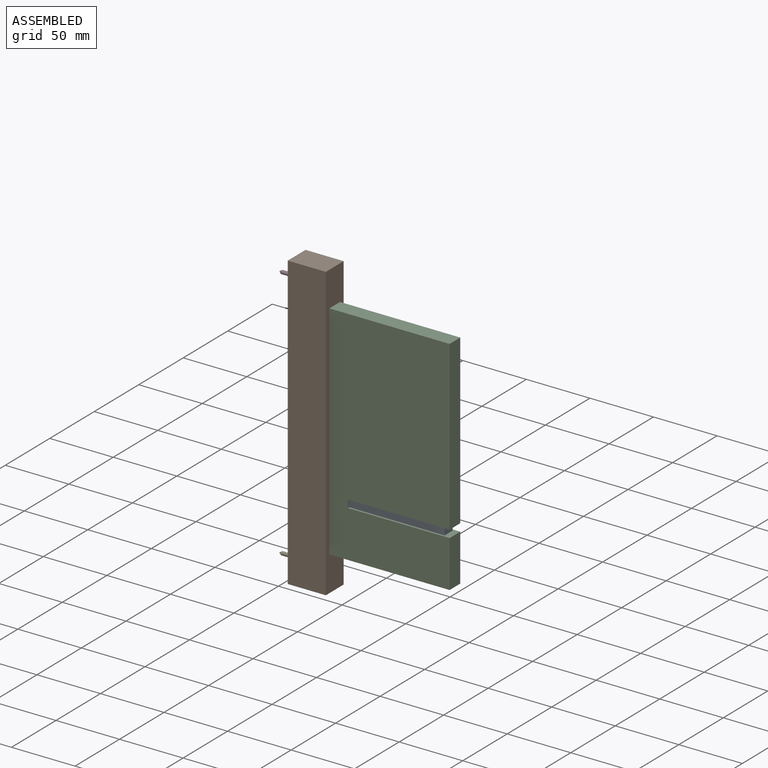
[diagram: assembled view]
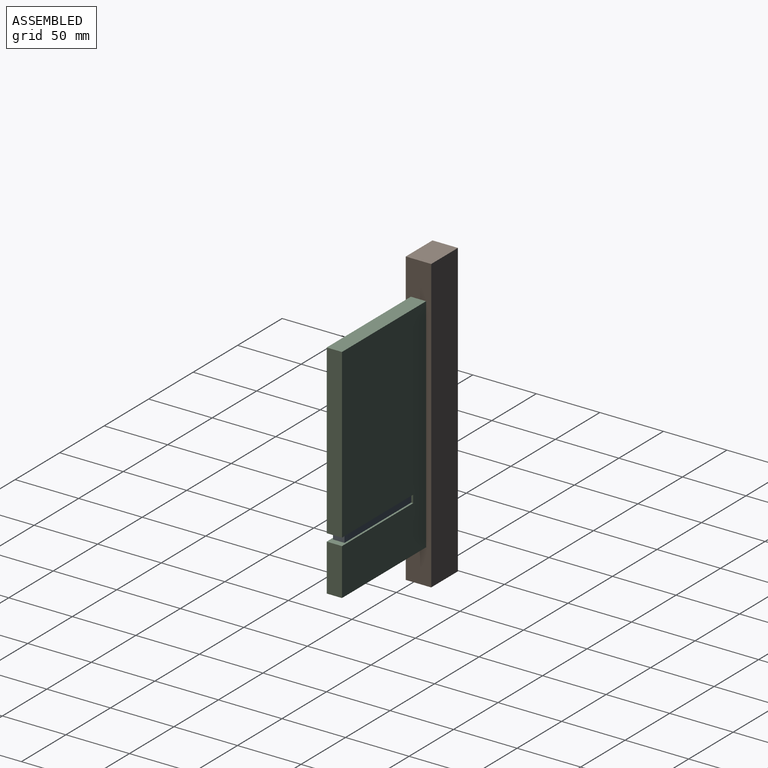
[diagram: assembled view, second angle]
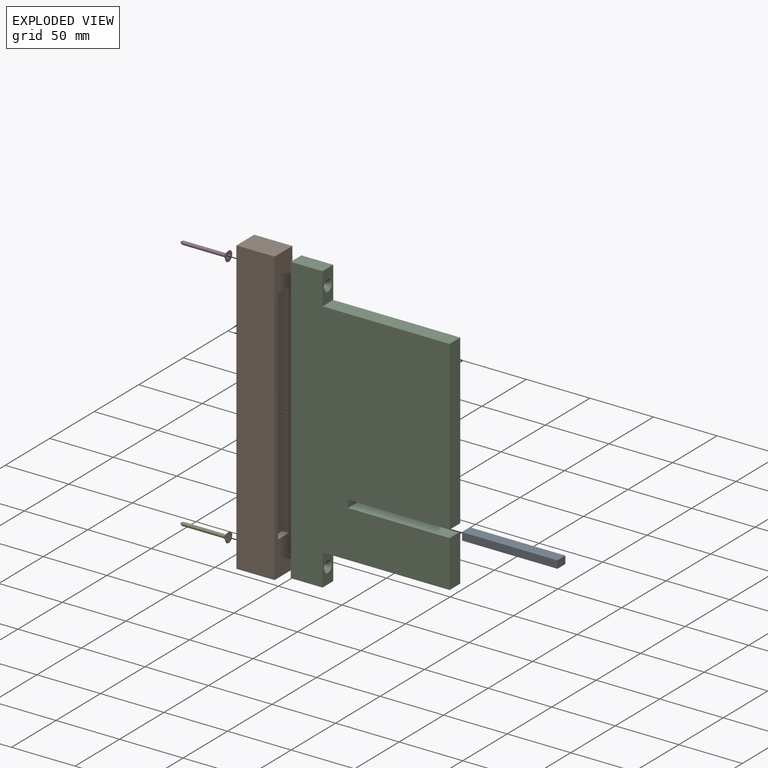
[diagram: exploded view]
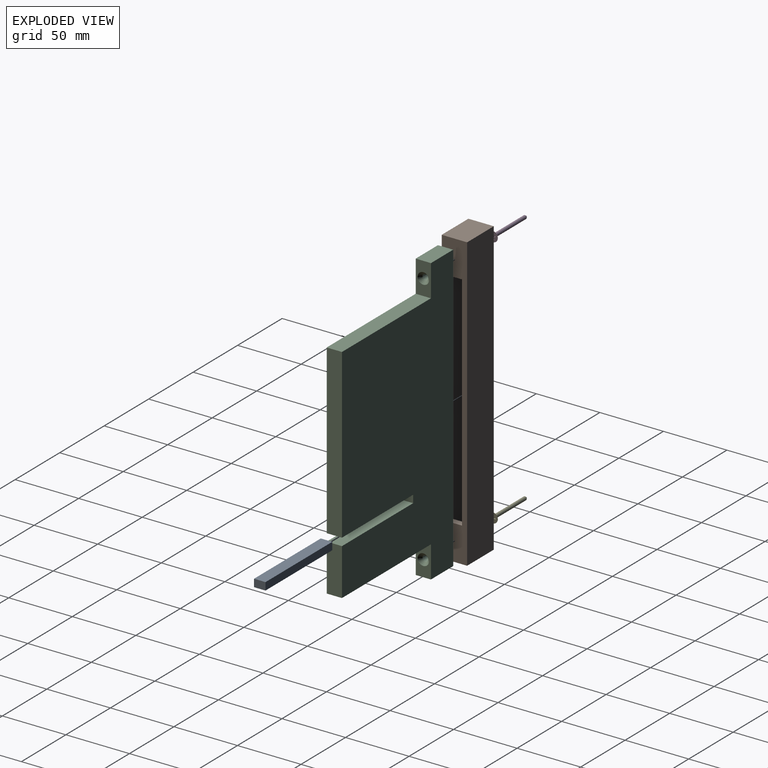
[diagram: exploded view, second angle]
ASSEMBLY  parts=5 mates=4
PART A: 6 faces, bbox 75x9x6 mm
  f0: plane 75x9mm, normal (0,0,-1), area 675mm2, adj f1,f3,f4,f5
  f1: plane 9x6mm, normal (1,0,0), area 54mm2, adj f0,f2,f4,f5
  f2: plane 75x9mm, normal (0,0,1), area 675mm2, adj f1,f3,f4,f5
  f3: plane 9x6mm, normal (-1,0,0), area 54mm2, adj f0,f2,f4,f5
  f4: plane 75x6mm, normal (0,-1,0), area 450mm2, adj f0,f1,f2,f3
  f5: plane 75x6mm, normal (0,1,0), area 450mm2, adj f0,f1,f2,f3
PART B: 14 faces, bbox 30x20x230 mm
  f0: plane 230x20mm, normal (1,0,0), area 2500mm2, adj f3,f4,f5,f6,f7,f9,f12,f13
  f1: plane 25x12mm, normal (-1,0,0), area 300mm2, adj f7,f8,f9,f13
  f2: plane 230x20mm, normal (-1,0,0), area 1900mm2, adj f3,f4,f5,f6,f7,f8,f9,f10
  f3: plane 30x20mm, normal (0,0,-1), area 600mm2, adj f0,f2,f5,f6
  f4: plane 30x20mm, normal (0,0,1), area 600mm2, adj f0,f2,f5,f6
  f5: plane 230x30mm, normal (0,-1,0), area 6900mm2, adj f0,f2,f3,f4
  f6: plane 230x30mm, normal (0,1,0), area 6900mm2, adj f0,f2,f3,f4
  f7: plane 225x30mm, normal (0,-1,0), area 6500mm2, adj f0,f1,f2,f8,f10,f11,f12,f13
  f8: plane 25x12mm, normal (0,0,1), area 300mm2, adj f1,f2,f7,f9
  f9: plane 225x30mm, normal (0,1,0), area 6500mm2, adj f0,f1,f2,f8,f10,f11,f12,f13
  f10: plane 25x12mm, normal (0,0,-1), area 300mm2, adj f2,f7,f9,f11
  f11: plane 25x12mm, normal (-1,0,0), area 300mm2, adj f7,f9,f10,f12
  f12: plane 12x5mm, normal (0,0,-1), area 60mm2, adj f0,f7,f9,f11
  f13: plane 12x5mm, normal (0,0,1), area 60mm2, adj f0,f1,f7,f9
PART C: 18 faces, bbox 125x12x225 mm
  f0: plane 132.07x12mm, normal (1,0,0), area 1584.9mm2, adj f1,f9,f10,f11
  f1: plane 100x12mm, normal (0,0,1), area 1200mm2, adj f0,f2,f9,f10
  f2: plane 25x12mm, normal (1,0,0), area 236.9mm2, adj f1,f3,f9,f10,f17
  f3: plane 25x12mm, normal (0,0,1), area 300mm2, adj f2,f4,f9,f10
  f4: plane 225x12mm, normal (-1,0,0), area 2668.2mm2, adj f3,f5,f9,f10,f14,f16
  f5: plane 25x12mm, normal (0,0,-1), area 300mm2, adj f4,f6,f9,f10
  f6: plane 25x12mm, normal (1,0,0), area 236.9mm2, adj f5,f7,f9,f10,f15
  f7: plane 100x12mm, normal (0,0,-1), area 1200mm2, adj f6,f8,f9,f10
  f8: plane 36.93x12mm, normal (1,0,0), area 443.1mm2, adj f7,f9,f10,f13
  f9: plane 225x125mm, normal (0,-1,0), area 22645mm2, adj f0,f1,f2,f3,f4,f5,f6,f7
  f10: plane 225x125mm, normal (0,1,0), area 22645mm2, adj f0,f1,f2,f3,f4,f5,f6,f7
  f11: plane 80x12mm, normal (0,0,-1), area 960mm2, adj f0,f9,f10,f12
  f12: plane 12x6mm, normal (1,0,0), area 72mm2, adj f9,f10,f11,f13
  f13: plane 80x12mm, normal (0,0,1), area 960mm2, adj f8,f9,f10,f12
  f14: cylinder r=2.25mm len=22.77mm, axis (1,0,0), area 321.9mm2, adj f4,f15
  f15: cone r=2.25mm half-angle=45deg, axis (1,0,0), area 66.7mm2, adj f6,f14
  f16: cylinder r=2.25mm len=22.77mm, axis (1,0,0), area 321.9mm2, adj f4,f17
  f17: cone r=2.25mm half-angle=45deg, axis (1,0,0), area 66.7mm2, adj f2,f16
PART D: 17 faces, bbox 38.1x8x8 mm
  f0: plane 8x8mm, normal (1,0,0), area 42mm2, adj f3,f4,f5,f6,f7,f8,f9,f10
  f1: cylinder r=1.42mm len=33.66mm, axis (-1,0,0), area 299.6mm2, adj f2,f3
  f2: cone r=1.42mm half-angle=35.9deg, axis (1,0,0), area 10.8mm2, adj f1
  f3: cone r=1.42mm half-angle=45.6deg, axis (1,0,0), area 61.5mm2, adj f0,f1
  f4: plane 1.08x1mm, normal (0,0,-1), area 1.1mm2, adj f0,f5,f15,f16
  f5: plane 1.66x1mm, normal (0,1,0), area 1.7mm2, adj f0,f4,f6,f16
  f6: plane 1.66x1mm, normal (0,0,-1), area 1.7mm2, adj f0,f5,f7,f16
  f7: plane 1.07x1mm, normal (0,1,0), area 1.1mm2, adj f0,f6,f8,f16
  f8: plane 1.66x1mm, normal (0,0,1), area 1.7mm2, adj f0,f7,f9,f16
  f9: plane 1.66x1mm, normal (0,1,0), area 1.7mm2, adj f0,f8,f10,f16
  f10: plane 1.08x1mm, normal (0,0,1), area 1.1mm2, adj f0,f9,f11,f16
  f11: plane 1.66x1mm, normal (0,-1,0), area 1.7mm2, adj f0,f10,f12,f16
  f12: plane 1.66x1mm, normal (0,0,1), area 1.7mm2, adj f0,f11,f13,f16
  f13: plane 1.07x1mm, normal (0,-1,0), area 1.1mm2, adj f0,f12,f14,f16
  f14: plane 1.66x1mm, normal (0,0,-1), area 1.7mm2, adj f0,f13,f15,f16
  f15: plane 1.66x1mm, normal (0,-1,0), area 1.7mm2, adj f0,f4,f14,f16
  f16: plane 4.39x4.38mm, normal (1,0,0), area 8.3mm2, adj f4,f5,f6,f7,f8,f9,f10,f11
PART E: same geometry as D
PLACE A t=(290.08,59,186.97)mm
PLACE B t=(208,59,234.54)mm
PLACE C t=(207.58,59,234.54)mm fixed
PLACE D rot(axis=(-1,0,0),160.4deg) t=(212.24,59,334.54)mm
PLACE E t=(212.24,59,134.54)mm
MATE slider C.f17 <-> B.f11  axis (-1,0,0) through (207.58,59,334.54)mm
MATE revolute D.f1 <-> C.f17  axis (1,0,0) through (232.58,59,334.54)mm
MATE slider E.f1 <-> C.f15  axis (1,0,0) through (232.58,59,134.54)mm
MATE slider C.f12 <-> A.f3  axis (1,0,0) through (252.58,59,186.97)mm
